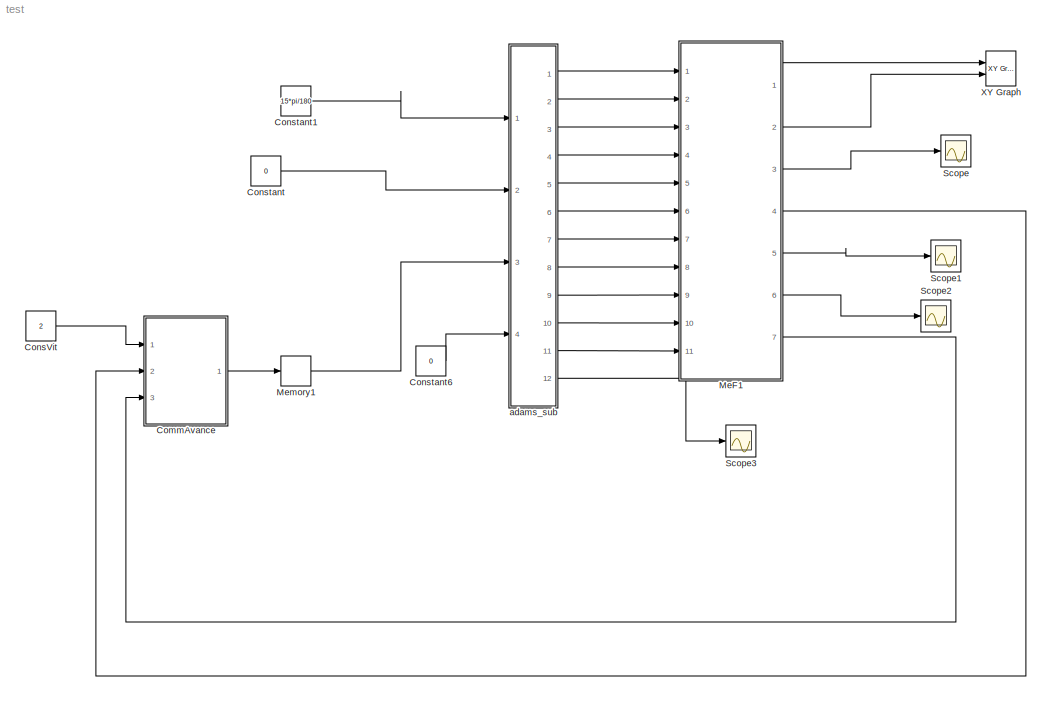
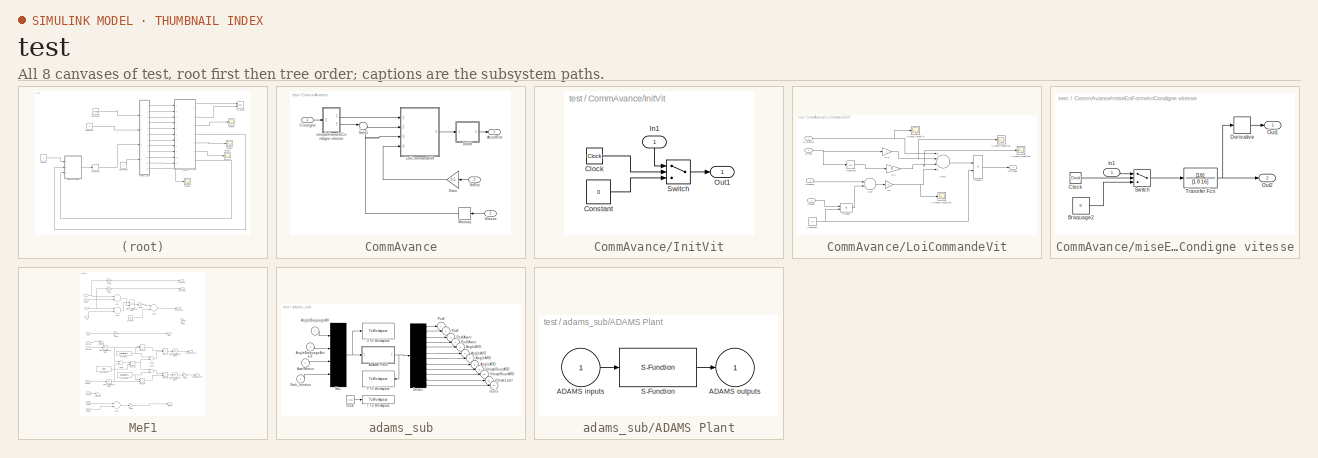
[diagram: thumbnail index - all 8 canvases of the model, root first then tree order]
MODEL test
KIND model
BLOCK [SubSystem] CommAvance
  FunctionWithSeparateData = off
  MaskHideContents = off
  MinAlgLoopOccurrences = off
  Opaque = off
  Ports = [3, 1]
  PropExecContextOutsideSubsystem = off
  RTWSystemCode = Auto
  RequestExecContextInheritance = off
BLOCK [Outport] CommAvance/AccelRot
  IconDisplay = Port number
  OutDataType = sfix(16)
  OutScaling = 2^0
BLOCK [Inport] CommAvance/Consigne
  IconDisplay = Port number
  OutDataType = sfix(16)
  OutScaling = 2^0
BLOCK [Gain] CommAvance/Gain
  Gain = -0.5
  OutDataType = sfix(16)
  OutScaling = 2^0
  ParameterDataType = sfix(16)
  ParameterScaling = 2^0
BLOCK [SubSystem] CommAvance/InitVit
  FunctionWithSeparateData = off
  MaskHideContents = off
  MinAlgLoopOccurrences = off
  Opaque = off
  Ports = [1, 1]
  PropExecContextOutsideSubsystem = off
  RTWSystemCode = Auto
  RequestExecContextInheritance = off
BLOCK [Clock] CommAvance/InitVit/Clock
  Decimation = 10
BLOCK [Constant] CommAvance/InitVit/Constant
  OutDataType = sfix(16)
  OutScaling = 2^0
  Value = 0
BLOCK [Inport] CommAvance/InitVit/In1
  IconDisplay = Port number
  OutDataType = sfix(16)
  OutScaling = 2^0
BLOCK [Outport] CommAvance/InitVit/Out1
  IconDisplay = Port number
  OutDataType = sfix(16)
  OutScaling = 2^0
BLOCK [Switch] CommAvance/InitVit/Switch
  InputSameDT = off
  Threshold = 1
BLOCK [SubSystem] CommAvance/LoiCommandeVit
  FunctionWithSeparateData = off
  MaskHideContents = off
  MinAlgLoopOccurrences = off
  Opaque = off
  Ports = [4, 1]
  PropExecContextOutsideSubsystem = off
  RTWSystemCode = Auto
  RequestExecContextInheritance = off
BLOCK [Constant] CommAvance/LoiCommandeVit/Constant1
  OutDataType = sfix(16)
  OutScaling = 2^0
  Value = 0.4
BLOCK [Outport] CommAvance/LoiCommandeVit/DOmega
  IconDisplay = Port number
  OutDataType = sfix(16)
  OutScaling = 2^0
BLOCK [Inport] CommAvance/LoiCommandeVit/DVDesire
  IconDisplay = Port number
  OutDataType = sfix(16)
  OutScaling = 2^0
BLOCK [Inport] CommAvance/LoiCommandeVit/Erreur
  IconDisplay = Port number
  OutDataType = sfix(16)
  OutScaling = 2^0
  Port = 2
BLOCK [Gain] CommAvance/LoiCommandeVit/GR
  Gain = 0
  OutDataType = sfix(16)
  OutScaling = 2^0
  ParameterDataType = sfix(16)
  ParameterScaling = 2^0
BLOCK [Gain] CommAvance/LoiCommandeVit/GVI
  Gain = 0
  OutDataType = sfix(16)
  OutScaling = 2^0
  ParameterDataType = sfix(16)
  ParameterScaling = 2^0
BLOCK [Gain] CommAvance/LoiCommandeVit/GVP
  Gain = -.1
  OutDataType = sfix(16)
  OutScaling = 2^0
  ParameterDataType = sfix(16)
  ParameterScaling = 2^0
BLOCK [Integrator] CommAvance/LoiCommandeVit/Integrator
  Ports = [1, 1]
BLOCK [Inport] CommAvance/LoiCommandeVit/Omega
  IconDisplay = Port number
  OutDataType = sfix(16)
  OutScaling = 2^0
  Port = 4
BLOCK [Product] CommAvance/LoiCommandeVit/Product
  InputSameDT = off
  OutDataType = sfix(16)
  OutScaling = 2^0
  Ports = [2, 1]
  RndMeth = Floor
BLOCK [Product] CommAvance/LoiCommandeVit/Product1
  InputSameDT = off
  Inputs = */
  OutDataType = sfix(16)
  OutScaling = 2^0
  Ports = [2, 1]
  RndMeth = Floor
BLOCK [Sum] CommAvance/LoiCommandeVit/Sum
  InputSameDT = off
  Inputs = -+
  OutDataType = sfix(16)
  OutDataTypeMode = Inherit via internal rule
  OutDataTypeStr = Inherit: Inherit via internal rule
  OutScaling = 2^0
  Ports = [2, 1]
BLOCK [Sum] CommAvance/LoiCommandeVit/Sum1
  InputSameDT = off
  Inputs = +--+
  OutDataType = sfix(16)
  OutDataTypeMode = Inherit via internal rule
  OutDataTypeStr = Inherit: Inherit via internal rule
  OutScaling = 2^0
  Ports = [4, 1]
BLOCK [Scope] CommAvance/LoiCommandeVit/Vitesse imposée
  DataFormat = StructureWithTime
  Floating = off
  LimitDataPoints = off
  NumInputPorts = 1
  Ports = [1]
  SampleTime = 0
  SaveName = derivevite
  SaveToWorkspace = on
  TimeRange = 12
  YMax = 2
  YMin = 0
BLOCK [Scope] CommAvance/LoiCommandeVit/Vitesse imposée1
  DataFormat = StructureWithTime
  Floating = off
  NumInputPorts = 1
  Ports = [1]
  SampleTime = 0
  SaveName = ScopeData15
  TimeRange = 12
  YMax = 0.000725
  YMin = 0.0002
BLOCK [Scope] CommAvance/LoiCommandeVit/Vitesse imposée2
  DataFormat = StructureWithTime
  Floating = off
  NumInputPorts = 1
  Ports = [1]
  SampleTime = 0
  SaveName = ScopeData16
  TimeRange = 12
  YMax = 1
  YMin = -1
BLOCK [Scope] CommAvance/LoiCommandeVit/Vitesse imposée3
  DataFormat = StructureWithTime
  Floating = off
  NumInputPorts = 1
  Ports = [1]
  SampleTime = 0
  SaveName = ScopeData17
  TimeRange = 12
  YMax = 0.0625
  YMin = 0.0425
BLOCK [Inport] CommAvance/LoiCommandeVit/Vmesure
  IconDisplay = Port number
  OutDataType = sfix(16)
  OutScaling = 2^0
  Port = 3
BLOCK [Memory] CommAvance/Memory
  InheritSampleTime = on
BLOCK [Sum] CommAvance/Sum5
  IconShape = round
  InputSameDT = off
  Inputs = |+-
  OutDataType = sfix(16)
  OutDataTypeMode = Inherit via internal rule
  OutDataTypeStr = Inherit: Inherit via internal rule
  OutScaling = 2^0
  Ports = [2, 1]
BLOCK [Inport] CommAvance/VitRot
  IconDisplay = Port number
  OutDataType = sfix(16)
  OutScaling = 2^0
  Port = 3
BLOCK [Inport] CommAvance/Vitesse
  IconDisplay = Port number
  OutDataType = sfix(16)
  OutScaling = 2^0
  Port = 2
BLOCK [SubSystem] CommAvance/miseEnForme\nCondigne vitesse
  FunctionWithSeparateData = off
  MaskHideContents = off
  MinAlgLoopOccurrences = off
  Opaque = off
  Ports = [1, 2]
  PropExecContextOutsideSubsystem = off
  RTWSystemCode = Auto
  RequestExecContextInheritance = off
BLOCK [Constant] CommAvance/miseEnForme\nCondigne vitesse/Braquage2
  OutDataType = sfix(16)
  OutScaling = 2^0
  Value = 0
BLOCK [Clock] CommAvance/miseEnForme\nCondigne vitesse/Clock
  Decimation = 10
BLOCK [Derivative] CommAvance/miseEnForme\nCondigne vitesse/Derivative
BLOCK [Inport] CommAvance/miseEnForme\nCondigne vitesse/In1
  IconDisplay = Port number
  OutDataType = sfix(16)
  OutScaling = 2^0
BLOCK [Outport] CommAvance/miseEnForme\nCondigne vitesse/Out1
  IconDisplay = Port number
  OutDataType = sfix(16)
  OutScaling = 2^0
BLOCK [Outport] CommAvance/miseEnForme\nCondigne vitesse/Out2
  IconDisplay = Port number
  OutDataType = sfix(16)
  OutScaling = 2^0
  Port = 2
BLOCK [Switch] CommAvance/miseEnForme\nCondigne vitesse/Switch
  InputSameDT = off
  SaturateOnIntegerOverflow = off
  Threshold = 1.5
BLOCK [TransferFcn] CommAvance/miseEnForme\nCondigne vitesse/Transfer Fcn
  Denominator = [1 8 16]
  Numerator = [16]
BLOCK [Constant] ConsVit
  OutDataType = sfix(16)
  OutScaling = 2^0
  Value = 2
BLOCK [Constant] Constant
  OutDataType = sfix(16)
  OutScaling = 2^0
  Value = 0
BLOCK [Constant] Constant1
  OutDataType = sfix(16)
  OutScaling = 2^0
  Value = 15*pi/180
BLOCK [Constant] Constant6
  OutDataType = sfix(16)
  OutScaling = 2^0
  Value = 0
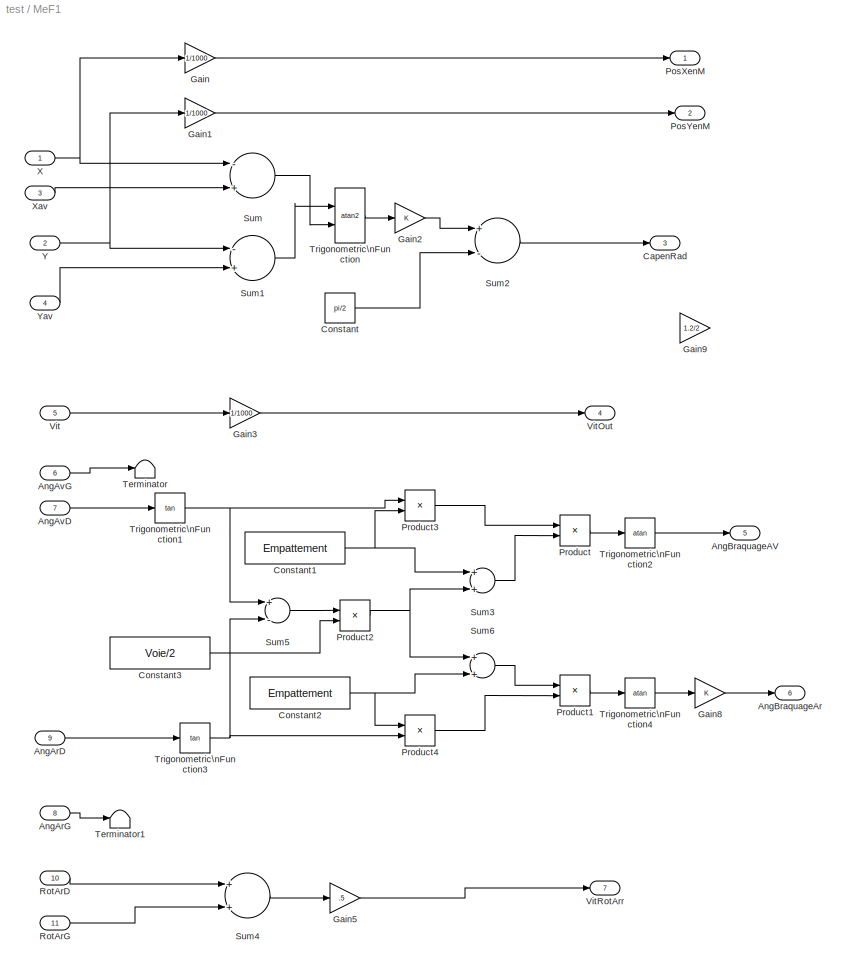
BLOCK [SubSystem] MeF1
  FunctionWithSeparateData = off
  MaskHideContents = off
  MinAlgLoopOccurrences = off
  Opaque = off
  Ports = [11, 7]
  PropExecContextOutsideSubsystem = off
  RTWSystemCode = Auto
  RequestExecContextInheritance = off
BLOCK [Inport] MeF1/AngArD
  IconDisplay = Port number
  OutDataType = sfix(16)
  OutScaling = 2^0
  Port = 9
BLOCK [Inport] MeF1/AngArG
  IconDisplay = Port number
  OutDataType = sfix(16)
  OutScaling = 2^0
  Port = 8
BLOCK [Inport] MeF1/AngAvD
  IconDisplay = Port number
  OutDataType = sfix(16)
  OutScaling = 2^0
  Port = 7
BLOCK [Inport] MeF1/AngAvG
  IconDisplay = Port number
  OutDataType = sfix(16)
  OutScaling = 2^0
  Port = 6
BLOCK [Outport] MeF1/AngBraquageAV
  IconDisplay = Port number
  OutDataType = sfix(16)
  OutScaling = 2^0
  Port = 5
BLOCK [Outport] MeF1/AngBraquageAr
  IconDisplay = Port number
  OutDataType = sfix(16)
  OutScaling = 2^0
  Port = 6
BLOCK [Outport] MeF1/CapenRad
  IconDisplay = Port number
  OutDataType = sfix(16)
  OutScaling = 2^0
  Port = 3
BLOCK [Constant] MeF1/Constant
  OutDataType = sfix(16)
  OutScaling = 2^0
  Value = pi/2
BLOCK [Constant] MeF1/Constant1
  OutDataType = sfix(16)
  OutScaling = 2^0
  Value = Empattement
BLOCK [Constant] MeF1/Constant2
  OutDataType = sfix(16)
  OutScaling = 2^0
  Value = Empattement
BLOCK [Constant] MeF1/Constant3
  OutDataType = sfix(16)
  OutScaling = 2^0
  Value = Voie/2
BLOCK [Gain] MeF1/Gain
  Gain = 1/1000
  OutDataType = sfix(16)
  OutDataTypeMode = Inherit via internal rule
  OutDataTypeStr = Inherit: Inherit via internal rule
  OutScaling = 2^0
  ParamDataTypeStr = Inherit: Inherit via internal rule
  ParameterDataType = sfix(16)
  ParameterDataTypeMode = Inherit via internal rule
  ParameterScaling = 2^0
  SaturateOnIntegerOverflow = off
BLOCK [Gain] MeF1/Gain1
  Gain = 1/1000
  OutDataType = sfix(16)
  OutDataTypeMode = Inherit via internal rule
  OutDataTypeStr = Inherit: Inherit via internal rule
  OutScaling = 2^0
  ParamDataTypeStr = Inherit: Inherit via internal rule
  ParameterDataType = sfix(16)
  ParameterDataTypeMode = Inherit via internal rule
  ParameterScaling = 2^0
  SaturateOnIntegerOverflow = off
BLOCK [Gain] MeF1/Gain2
  OutDataType = sfix(16)
  OutDataTypeMode = Inherit via internal rule
  OutDataTypeStr = Inherit: Inherit via internal rule
  OutScaling = 2^0
  ParamDataTypeStr = Inherit: Inherit via internal rule
  ParameterDataType = sfix(16)
  ParameterDataTypeMode = Inherit via internal rule
  ParameterScaling = 2^0
  SaturateOnIntegerOverflow = off
BLOCK [Gain] MeF1/Gain3
  Gain = 1/1000
  OutDataType = sfix(16)
  OutDataTypeMode = Inherit via internal rule
  OutDataTypeStr = Inherit: Inherit via internal rule
  OutScaling = 2^0
  ParamDataTypeStr = Inherit: Inherit via internal rule
  ParameterDataType = sfix(16)
  ParameterDataTypeMode = Inherit via internal rule
  ParameterScaling = 2^0
  SaturateOnIntegerOverflow = off
BLOCK [Gain] MeF1/Gain5
  Gain = .5
  OutDataType = sfix(16)
  OutDataTypeMode = Inherit via internal rule
  OutDataTypeStr = Inherit: Inherit via internal rule
  OutScaling = 2^0
  ParamDataTypeStr = Inherit: Inherit via internal rule
  ParameterDataType = sfix(16)
  ParameterDataTypeMode = Inherit via internal rule
  ParameterScaling = 2^0
  SaturateOnIntegerOverflow = off
BLOCK [Gain] MeF1/Gain8
  OutDataType = sfix(16)
  OutDataTypeMode = Inherit via internal rule
  OutDataTypeStr = Inherit: Inherit via internal rule
  OutScaling = 2^0
  ParamDataTypeStr = Inherit: Inherit via internal rule
  ParameterDataType = sfix(16)
  ParameterDataTypeMode = Inherit via internal rule
  ParameterScaling = 2^0
  SaturateOnIntegerOverflow = off
BLOCK [Gain] MeF1/Gain9
  Gain = 1.2/2
  OutDataType = sfix(16)
  OutDataTypeMode = Inherit via internal rule
  OutDataTypeStr = Inherit: Inherit via internal rule
  OutScaling = 2^0
  ParamDataTypeStr = Inherit: Inherit via internal rule
  ParameterDataType = sfix(16)
  ParameterDataTypeMode = Inherit via internal rule
  ParameterScaling = 2^0
  SaturateOnIntegerOverflow = off
BLOCK [Outport] MeF1/PosXenM
  IconDisplay = Port number
  OutDataType = sfix(16)
  OutScaling = 2^0
BLOCK [Outport] MeF1/PosYenM
  IconDisplay = Port number
  OutDataType = sfix(16)
  OutScaling = 2^0
  Port = 2
BLOCK [Product] MeF1/Product
  InputSameDT = off
  Inputs = */
  OutDataType = sfix(16)
  OutDataTypeMode = Inherit via internal rule
  OutDataTypeStr = Inherit: Inherit via internal rule
  OutScaling = 2^0
  Ports = [2, 1]
  SaturateOnIntegerOverflow = off
BLOCK [Product] MeF1/Product1
  InputSameDT = off
  Inputs = /*
  OutDataType = sfix(16)
  OutDataTypeMode = Inherit via internal rule
  OutDataTypeStr = Inherit: Inherit via internal rule
  OutScaling = 2^0
  Ports = [2, 1]
  SaturateOnIntegerOverflow = off
BLOCK [Product] MeF1/Product2
  InputSameDT = off
  Inputs = **
  OutDataType = sfix(16)
  OutDataTypeMode = Inherit via internal rule
  OutDataTypeStr = Inherit: Inherit via internal rule
  OutScaling = 2^0
  Ports = [2, 1]
  SaturateOnIntegerOverflow = off
BLOCK [Product] MeF1/Product3
  InputSameDT = off
  Inputs = **
  OutDataType = sfix(16)
  OutDataTypeMode = Inherit via internal rule
  OutDataTypeStr = Inherit: Inherit via internal rule
  OutScaling = 2^0
  Ports = [2, 1]
  SaturateOnIntegerOverflow = off
BLOCK [Product] MeF1/Product4
  InputSameDT = off
  Inputs = **
  OutDataType = sfix(16)
  OutDataTypeMode = Inherit via internal rule
  OutDataTypeStr = Inherit: Inherit via internal rule
  OutScaling = 2^0
  Ports = [2, 1]
  SaturateOnIntegerOverflow = off
BLOCK [Inport] MeF1/RotArD
  IconDisplay = Port number
  OutDataType = sfix(16)
  OutScaling = 2^0
  Port = 10
BLOCK [Inport] MeF1/RotArG
  IconDisplay = Port number
  OutDataType = sfix(16)
  OutScaling = 2^0
  Port = 11
BLOCK [Sum] MeF1/Sum
  InputSameDT = off
  Inputs = -+
  OutDataType = sfix(16)
  OutDataTypeMode = Inherit via internal rule
  OutDataTypeStr = Inherit: Inherit via internal rule
  OutScaling = 2^0
  Ports = [2, 1]
  SaturateOnIntegerOverflow = off
BLOCK [Sum] MeF1/Sum1
  InputSameDT = off
  Inputs = -+
  OutDataType = sfix(16)
  OutDataTypeMode = Inherit via internal rule
  OutDataTypeStr = Inherit: Inherit via internal rule
  OutScaling = 2^0
  Ports = [2, 1]
  SaturateOnIntegerOverflow = off
BLOCK [Sum] MeF1/Sum2
  InputSameDT = off
  Inputs = +-
  OutDataType = sfix(16)
  OutDataTypeMode = Inherit via internal rule
  OutDataTypeStr = Inherit: Inherit via internal rule
  OutScaling = 2^0
  Ports = [2, 1]
  SaturateOnIntegerOverflow = off
BLOCK [Sum] MeF1/Sum3
  InputSameDT = off
  OutDataType = sfix(16)
  OutDataTypeMode = Inherit via internal rule
  OutDataTypeStr = Inherit: Inherit via internal rule
  OutScaling = 2^0
  Ports = [2, 1]
  SaturateOnIntegerOverflow = off
BLOCK [Sum] MeF1/Sum4
  InputSameDT = off
  OutDataType = sfix(16)
  OutDataTypeMode = Inherit via internal rule
  OutDataTypeStr = Inherit: Inherit via internal rule
  OutScaling = 2^0
  Ports = [2, 1]
  SaturateOnIntegerOverflow = off
BLOCK [Sum] MeF1/Sum5
  InputSameDT = off
  Inputs = +-
  OutDataType = sfix(16)
  OutDataTypeMode = Inherit via internal rule
  OutDataTypeStr = Inherit: Inherit via internal rule
  OutScaling = 2^0
  Ports = [2, 1]
  SaturateOnIntegerOverflow = off
BLOCK [Sum] MeF1/Sum6
  InputSameDT = off
  OutDataType = sfix(16)
  OutDataTypeMode = Inherit via internal rule
  OutDataTypeStr = Inherit: Inherit via internal rule
  OutScaling = 2^0
  Ports = [2, 1]
  SaturateOnIntegerOverflow = off
BLOCK [Terminator] MeF1/Terminator
BLOCK [Terminator] MeF1/Terminator1
BLOCK [Trigonometry] MeF1/Trigonometric\nFunction
  Operator = atan2
  Ports = [2, 1]
BLOCK [Trigonometry] MeF1/Trigonometric\nFunction1
  Operator = tan
  Ports = [1, 1]
BLOCK [Trigonometry] MeF1/Trigonometric\nFunction2
  Operator = atan
  Ports = [1, 1]
BLOCK [Trigonometry] MeF1/Trigonometric\nFunction3
  Operator = tan
  Ports = [1, 1]
BLOCK [Trigonometry] MeF1/Trigonometric\nFunction4
  Operator = atan
  Ports = [1, 1]
BLOCK [Inport] MeF1/Vit
  IconDisplay = Port number
  OutDataType = sfix(16)
  OutScaling = 2^0
  Port = 5
BLOCK [Outport] MeF1/VitOut
  IconDisplay = Port number
  OutDataType = sfix(16)
  OutScaling = 2^0
  Port = 4
BLOCK [Outport] MeF1/VitRotArr
  IconDisplay = Port number
  OutDataType = sfix(16)
  OutScaling = 2^0
  Port = 7
BLOCK [Inport] MeF1/X
  IconDisplay = Port number
  OutDataType = sfix(16)
  OutScaling = 2^0
BLOCK [Inport] MeF1/Xav
  IconDisplay = Port number
  OutDataType = sfix(16)
  OutScaling = 2^0
  Port = 3
BLOCK [Inport] MeF1/Y
  IconDisplay = Port number
  OutDataType = sfix(16)
  OutScaling = 2^0
  Port = 2
BLOCK [Inport] MeF1/Yav
  IconDisplay = Port number
  OutDataType = sfix(16)
  OutScaling = 2^0
  Port = 4
BLOCK [Memory] Memory1
  InheritSampleTime = on
BLOCK [Scope] Scope
  DataFormat = StructureWithTime
  Floating = off
  NumInputPorts = 1
  Ports = [1]
  SampleTime = 0
BLOCK [Scope] Scope1
  DataFormat = StructureWithTime
  Floating = off
  NumInputPorts = 1
  Ports = [1]
  SampleTime = 0
  SaveName = ScopeData1
BLOCK [Scope] Scope2
  DataFormat = StructureWithTime
  Floating = off
  NumInputPorts = 1
  Ports = [1]
  SampleTime = 0
  SaveName = ScopeData2
BLOCK [Scope] Scope3
  DataFormat = StructureWithTime
  Floating = off
  NumInputPorts = 1
  Ports = [1]
  SampleTime = 0
  SaveName = ScopeData3
BLOCK [Reference] XY Graph  REF=simulink/Sinks/XY Graph
  FunctionWithSeparateData = off
  Ports = [2]
  RTWMemSecDataConstants = Inherit from model
  RTWMemSecDataInternal = Inherit from model
  RTWMemSecDataParameters = Inherit from model
  RTWMemSecFuncExecute = Inherit from model
  RTWMemSecFuncInitTerm = Inherit from model
  ShowPortLabels = FromPortIcon
  SourceBlock = simulink/Sinks/XY Graph
  SourceType = XY scope.
  SystemSampleTime = -1
  st = -1
  xmax = 1
  xmin = -1
  ymax = 1
  ymin = -1
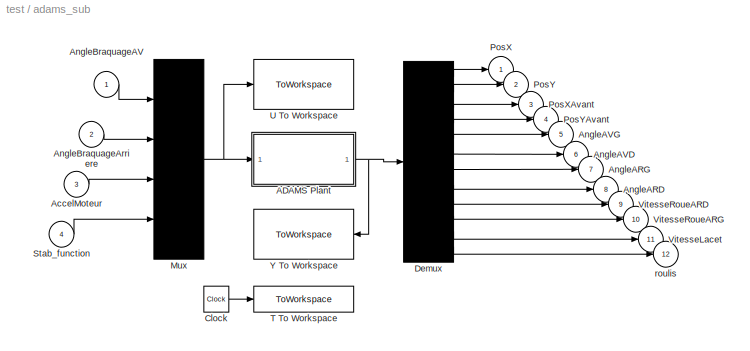
BLOCK [SubSystem] adams_sub
  FunctionWithSeparateData = off
  MaskHideContents = off
  MinAlgLoopOccurrences = off
  Opaque = off
  Ports = [4, 12]
  PropExecContextOutsideSubsystem = off
  RTWSystemCode = Auto
  RequestExecContextInheritance = off
  ShowPortLabels = none
BLOCK [SubSystem] adams_sub/ADAMS Plant
  FunctionWithSeparateData = off
  MaskCallbackString = |||||||||||||||||
  MaskDescription = Simulate any Adams plant model either in Adams/Solver form (.adm file) or in Adams/View form (.cmd file)
  MaskDisplay = disp( 'MSCSoftware' )
  MaskEnableString = on,on,on,on,on,on,on,on,on,on,on,on,on,on,on,on,on,on
  MaskHideContents = off
  MaskIconFrame = on
  MaskIconOpaque = on
  MaskIconRotate = none
  MaskIconUnits = autoscale
  MaskPromptString = Adams install directory|Adams working directory|Interprocess Option|Adams host|Adams solver type|User executable (opt.: if blank - use standard)|Adams model file prefix|Adams/View input names|Adams/View output names|Output files prefix (opt.: if blank - no output)|Communication Interval|Number of communications per output step|Interpolation Order|Direct Feedthrough |Simulation     mode|Animation  ...<+63ch>
  MaskStyleString = edit,edit,popup(PIPE(DDE)|TCP/IP),edit,popup(Fortran|C++),edit,edit,edit,edit,edit,edit,edit,edit,popup(no|yes),popup(discrete|continuous),popup(batch|interactive),edit,edit
  MaskTabNameString = ,,,,,,,,,,,,,,,,,
  MaskToolTipString = on,on,on,on,on,on,on,on,on,on,on,on,on,on,on,on,on,on
  MaskTunableValueString = on,on,on,on,on,on,on,on,on,on,on,on,on,on,on,on,on,on
  MaskType = Adams Plant
  MaskValueString = ADAMS_sysdir|ADAMS_cwd|PIPE(DDE)|ADAMS_host|C++|ADAMS_exec|ADAMS_prefix|ADAMS_inputs|ADAMS_outputs|ADAMS_prefix|0.01|1|0|no|discrete|interactive|ADAMS_static|[ADAMS_init]
  MaskVarAliasString = ,,,,,,,,,,,,,,,,,
  MaskVariables = exevie=@1;workdir=@2;comtyp=&3;ada_host=@4;exetyp=&5;exesol=@6;nampre=@7;nam_in=@8;namout=@9;outfil=@10;dt_out=@11;o_rate=@12;interorder=@13;dft=&14;modsim=&15;modani=&16;stat=@17;inicmd=@18;
  MaskVisibilityString = on,on,on,on,on,on,on,on,on,on,on,on,on,on,on,on,on,on
  MinAlgLoopOccurrences = off
  Opaque = off
  Ports = [1, 1]
  PropExecContextOutsideSubsystem = off
  RTWSystemCode = Auto
  RequestExecContextInheritance = off
BLOCK [Inport] adams_sub/ADAMS Plant/ADAMS inputs
  IconDisplay = Port number
BLOCK [Outport] adams_sub/ADAMS Plant/ADAMS outputs
  IconDisplay = Port number
  InitialOutput = 0
BLOCK [S-Function] adams_sub/ADAMS Plant/S-Function
  EnableBusSupport = off
  FunctionName = adams_plant
  Parameters = exevie,exesol,stat,outfil,nampre,o_rate,nam_in,namout,dft,modsim,modani,dt_out,inicmd,exetyp,comtyp,ada_host, workdir,interorder
  Ports = [1, 1]
BLOCK [Inport] adams_sub/AccelMoteur         
  IconDisplay = Port number
  Port = 3
BLOCK [Outport] adams_sub/AngleARD      
  IconDisplay = Port number
  Port = 8
BLOCK [Outport] adams_sub/AngleARG      
  IconDisplay = Port number
  Port = 7
BLOCK [Outport] adams_sub/AngleAVD      
  IconDisplay = Port number
  Port = 6
BLOCK [Outport] adams_sub/AngleAVG      
  IconDisplay = Port number
  Port = 5
BLOCK [Inport] adams_sub/AngleBraquageAV     
  IconDisplay = Port number
BLOCK [Inport] adams_sub/AngleBraquageArriere
  IconDisplay = Port number
  Port = 2
BLOCK [Clock] adams_sub/Clock
  Decimation = 10
BLOCK [Demux] adams_sub/Demux
  Outputs = 12
  Ports = [1, 12]
BLOCK [Mux] adams_sub/Mux
  Ports = [4, 1]
BLOCK [Outport] adams_sub/PosX          
  IconDisplay = Port number
BLOCK [Outport] adams_sub/PosXAvant     
  IconDisplay = Port number
  Port = 3
BLOCK [Outport] adams_sub/PosY          
  IconDisplay = Port number
  Port = 2
BLOCK [Outport] adams_sub/PosYAvant     
  IconDisplay = Port number
  Port = 4
BLOCK [Inport] adams_sub/Stab_function       
  IconDisplay = Port number
  Port = 4
BLOCK [ToWorkspace] adams_sub/T To Workspace
  MaxDataPoints = 100000
  SaveFormat = Array
  VariableName = ADAMS_tout
BLOCK [ToWorkspace] adams_sub/U To Workspace
  MaxDataPoints = 100000
  SaveFormat = Array
  VariableName = ADAMS_uout
BLOCK [Outport] adams_sub/VitesseLacet  
  IconDisplay = Port number
  Port = 11
BLOCK [Outport] adams_sub/VitesseRoueARD
  IconDisplay = Port number
  Port = 9
BLOCK [Outport] adams_sub/VitesseRoueARG
  IconDisplay = Port number
  Port = 10
BLOCK [ToWorkspace] adams_sub/Y To Workspace
  MaxDataPoints = 100000
  SaveFormat = Array
  VariableName = ADAMS_yout
BLOCK [Outport] adams_sub/roulis        
  IconDisplay = Port number
  Port = 12
LINE CommAvance/Consigne:1 -> CommAvance/miseEnForme\nCondigne vitesse:1
LINE CommAvance/Gain:1 -> CommAvance/LoiCommandeVit:4
LINE CommAvance/InitVit/Clock:1 -> CommAvance/InitVit/Switch:2
LINE CommAvance/InitVit/Constant:1 -> CommAvance/InitVit/Switch:3
LINE CommAvance/InitVit/In1:1 -> CommAvance/InitVit/Switch:1
LINE CommAvance/InitVit/Switch:1 -> CommAvance/InitVit/Out1:1
LINE CommAvance/InitVit:1 -> CommAvance/AccelRot:1
NET CommAvance/LoiCommandeVit/Constant1:1 -> CommAvance/LoiCommandeVit/Product1:2, CommAvance/LoiCommandeVit/Product:2
NET CommAvance/LoiCommandeVit/DVDesire:1 -> CommAvance/LoiCommandeVit/Sum1:1, CommAvance/LoiCommandeVit/Vitesse imposée:1
NET CommAvance/LoiCommandeVit/Erreur:1 -> CommAvance/LoiCommandeVit/GVP:1, CommAvance/LoiCommandeVit/Integrator:1
NET CommAvance/LoiCommandeVit/GR:1 -> CommAvance/LoiCommandeVit/Sum1:4, CommAvance/LoiCommandeVit/Vitesse imposée3:1
NET CommAvance/LoiCommandeVit/GVI:1 -> CommAvance/LoiCommandeVit/Sum1:3, CommAvance/LoiCommandeVit/Vitesse imposée2:1
NET CommAvance/LoiCommandeVit/GVP:1 -> CommAvance/LoiCommandeVit/Sum1:2, CommAvance/LoiCommandeVit/Vitesse imposée1:1
LINE CommAvance/LoiCommandeVit/Integrator:1 -> CommAvance/LoiCommandeVit/GVI:1
LINE CommAvance/LoiCommandeVit/Omega:1 -> CommAvance/LoiCommandeVit/Product:1
LINE CommAvance/LoiCommandeVit/Product1:1 -> CommAvance/LoiCommandeVit/DOmega:1
LINE CommAvance/LoiCommandeVit/Product:1 -> CommAvance/LoiCommandeVit/Sum:2
LINE CommAvance/LoiCommandeVit/Sum1:1 -> CommAvance/LoiCommandeVit/Product1:1
LINE CommAvance/LoiCommandeVit/Sum:1 -> CommAvance/LoiCommandeVit/GR:1
LINE CommAvance/LoiCommandeVit/Vmesure:1 -> CommAvance/LoiCommandeVit/Sum:1
LINE CommAvance/LoiCommandeVit:1 -> CommAvance/InitVit:1
NET CommAvance/Memory:1 -> CommAvance/LoiCommandeVit:3, CommAvance/Sum5:2
LINE CommAvance/Sum5:1 -> CommAvance/LoiCommandeVit:2
LINE CommAvance/VitRot:1 -> CommAvance/Gain:1
LINE CommAvance/Vitesse:1 -> CommAvance/Memory:1
LINE CommAvance/miseEnForme\nCondigne vitesse/Braquage2:1 -> CommAvance/miseEnForme\nCondigne vitesse/Switch:3
LINE CommAvance/miseEnForme\nCondigne vitesse/Clock:1 -> CommAvance/miseEnForme\nCondigne vitesse/Switch:2
LINE CommAvance/miseEnForme\nCondigne vitesse/Derivative:1 -> CommAvance/miseEnForme\nCondigne vitesse/Out1:1
LINE CommAvance/miseEnForme\nCondigne vitesse/In1:1 -> CommAvance/miseEnForme\nCondigne vitesse/Switch:1
LINE CommAvance/miseEnForme\nCondigne vitesse/Switch:1 -> CommAvance/miseEnForme\nCondigne vitesse/Transfer Fcn:1
NET CommAvance/miseEnForme\nCondigne vitesse/Transfer Fcn:1 -> CommAvance/miseEnForme\nCondigne vitesse/Derivative:1, CommAvance/miseEnForme\nCondigne vitesse/Out2:1
LINE CommAvance/miseEnForme\nCondigne vitesse:1 -> CommAvance/LoiCommandeVit:1
LINE CommAvance/miseEnForme\nCondigne vitesse:2 -> CommAvance/Sum5:1
LINE CommAvance:1 -> Memory1:1
LINE ConsVit:1 -> CommAvance:1
LINE Constant1:1 -> adams_sub:1
LINE Constant6:1 -> adams_sub:4
LINE Constant:1 -> adams_sub:2
LINE MeF1/AngArD:1 -> MeF1/Trigonometric\nFunction3:1
LINE MeF1/AngArG:1 -> MeF1/Terminator1:1
LINE MeF1/AngAvD:1 -> MeF1/Trigonometric\nFunction1:1
LINE MeF1/AngAvG:1 -> MeF1/Terminator:1
NET MeF1/Constant1:1 -> MeF1/Product3:2, MeF1/Sum3:1
NET MeF1/Constant2:1 -> MeF1/Product4:1, MeF1/Sum6:2
LINE MeF1/Constant3:1 -> MeF1/Product2:2
LINE MeF1/Constant:1 -> MeF1/Sum2:2
LINE MeF1/Gain1:1 -> MeF1/PosYenM:1
LINE MeF1/Gain2:1 -> MeF1/Sum2:1
LINE MeF1/Gain3:1 -> MeF1/VitOut:1
LINE MeF1/Gain5:1 -> MeF1/VitRotArr:1
LINE MeF1/Gain8:1 -> MeF1/AngBraquageAr:1
LINE MeF1/Gain:1 -> MeF1/PosXenM:1
LINE MeF1/Product1:1 -> MeF1/Trigonometric\nFunction4:1
NET MeF1/Product2:1 -> MeF1/Sum3:2, MeF1/Sum6:1
LINE MeF1/Product3:1 -> MeF1/Product:1
LINE MeF1/Product4:1 -> MeF1/Product1:2
LINE MeF1/Product:1 -> MeF1/Trigonometric\nFunction2:1
LINE MeF1/RotArD:1 -> MeF1/Sum4:1
LINE MeF1/RotArG:1 -> MeF1/Sum4:2
LINE MeF1/Sum1:1 -> MeF1/Trigonometric\nFunction:1
LINE MeF1/Sum2:1 -> MeF1/CapenRad:1
LINE MeF1/Sum3:1 -> MeF1/Product:2
LINE MeF1/Sum4:1 -> MeF1/Gain5:1
LINE MeF1/Sum5:1 -> MeF1/Product2:1
LINE MeF1/Sum6:1 -> MeF1/Product1:1
LINE MeF1/Sum:1 -> MeF1/Trigonometric\nFunction:2
NET MeF1/Trigonometric\nFunction1:1 -> MeF1/Product3:1, MeF1/Sum5:1
LINE MeF1/Trigonometric\nFunction2:1 -> MeF1/AngBraquageAV:1
NET MeF1/Trigonometric\nFunction3:1 -> MeF1/Product4:2, MeF1/Sum5:2
LINE MeF1/Trigonometric\nFunction4:1 -> MeF1/Gain8:1
LINE MeF1/Trigonometric\nFunction:1 -> MeF1/Gain2:1
LINE MeF1/Vit:1 -> MeF1/Gain3:1
NET MeF1/X:1 -> MeF1/Gain:1, MeF1/Sum:1
LINE MeF1/Xav:1 -> MeF1/Sum:2
NET MeF1/Y:1 -> MeF1/Gain1:1, MeF1/Sum1:1
LINE MeF1/Yav:1 -> MeF1/Sum1:2
LINE MeF1:1 -> XY Graph:1
LINE MeF1:2 -> XY Graph:2
LINE MeF1:3 -> Scope:1
LINE MeF1:4 -> CommAvance:2
LINE MeF1:5 -> Scope1:1
LINE MeF1:6 -> Scope2:1
LINE MeF1:7 -> CommAvance:3
LINE Memory1:1 -> adams_sub:3
LINE adams_sub/ADAMS Plant/ADAMS inputs:1 -> adams_sub/ADAMS Plant/S-Function:1
LINE adams_sub/ADAMS Plant/S-Function:1 -> adams_sub/ADAMS Plant/ADAMS outputs:1
NET adams_sub/ADAMS Plant:1 -> adams_sub/Demux:1, adams_sub/Y To Workspace:1
LINE adams_sub/AccelMoteur         :1 -> adams_sub/Mux:3
LINE adams_sub/AngleBraquageAV     :1 -> adams_sub/Mux:1
LINE adams_sub/AngleBraquageArriere:1 -> adams_sub/Mux:2
LINE adams_sub/Clock:1 -> adams_sub/T To Workspace:1
LINE adams_sub/Demux:1 -> adams_sub/PosX          :1
LINE adams_sub/Demux:10 -> adams_sub/VitesseRoueARG:1
LINE adams_sub/Demux:11 -> adams_sub/VitesseLacet  :1
LINE adams_sub/Demux:12 -> adams_sub/roulis        :1
LINE adams_sub/Demux:2 -> adams_sub/PosY          :1
LINE adams_sub/Demux:3 -> adams_sub/PosXAvant     :1
LINE adams_sub/Demux:4 -> adams_sub/PosYAvant     :1
LINE adams_sub/Demux:5 -> adams_sub/AngleAVG      :1
LINE adams_sub/Demux:6 -> adams_sub/AngleAVD      :1
LINE adams_sub/Demux:7 -> adams_sub/AngleARG      :1
LINE adams_sub/Demux:8 -> adams_sub/AngleARD      :1
LINE adams_sub/Demux:9 -> adams_sub/VitesseRoueARD:1
NET adams_sub/Mux:1 -> adams_sub/ADAMS Plant:1, adams_sub/U To Workspace:1
LINE adams_sub/Stab_function       :1 -> adams_sub/Mux:4
LINE adams_sub:1 -> MeF1:1
LINE adams_sub:10 -> MeF1:10
LINE adams_sub:11 -> MeF1:11
LINE adams_sub:12 -> Scope3:1
LINE adams_sub:2 -> MeF1:2
LINE adams_sub:3 -> MeF1:3
LINE adams_sub:4 -> MeF1:4
LINE adams_sub:5 -> MeF1:5
LINE adams_sub:6 -> MeF1:6
LINE adams_sub:7 -> MeF1:7
LINE adams_sub:8 -> MeF1:8
LINE adams_sub:9 -> MeF1:9
note: NET lines group one-source signal fan-out (src -> all destinations, sorted); 1:1 wires keep LINE
